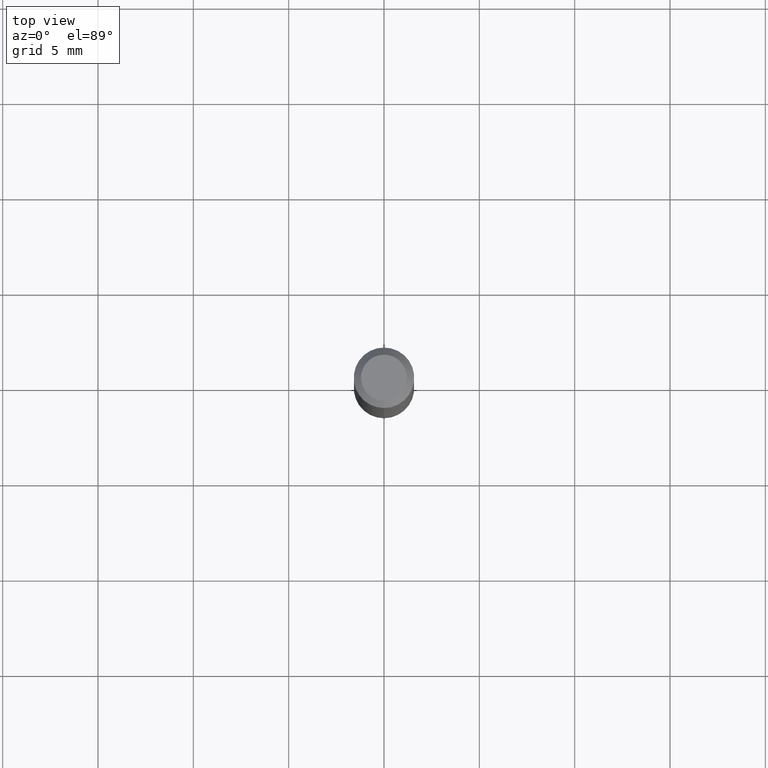
[diagram: clean part render]
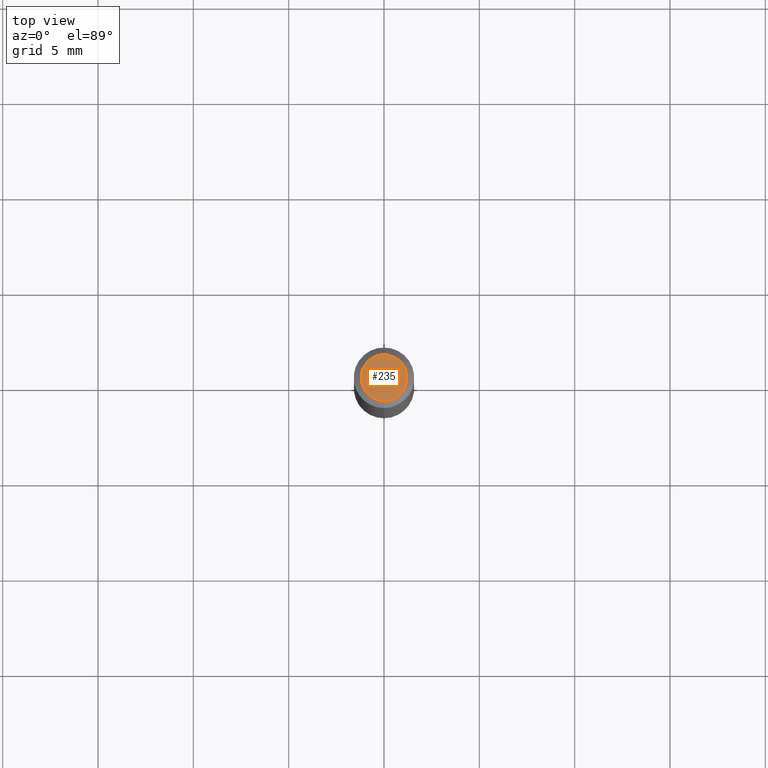
[diagram: same view with one face highlighted and labeled with its STEP entity id]
A machine part, top view. The second image highlights one B-rep face of the part: STEP entity #235.
In plain terms, the highlighted planar face has unit normal (0, -0, -1).
Its self-contained STEP definition (entity closure, byte-faithful):
#1 = CARTESIAN_POINT ( 'NONE',  ( -5.856610115379453256E-45, 8.361780120346629155E-31, 2.394895667340546181E-16 ) ) ;
#7 = DIRECTION ( 'NONE',  ( 6.982962677686265922E-15, 1.000000000000000000, -3.491500792446676840E-15 ) ) ;
#50 = DIRECTION ( 'NONE',  ( -6.982962677686266711E-15, -1.000000000000000000, 3.491500792446677234E-15 ) ) ;
#93 = AXIS2_PLACEMENT_3D ( 'NONE', #137, #291, #95 ) ;
#95 = DIRECTION ( 'NONE',  ( -6.982962677686266711E-15, -1.000000000000000000, 3.491500792446677234E-15 ) ) ;
#136 = PLANE ( 'NONE',  #406 ) ;
#137 = CARTESIAN_POINT ( 'NONE',  ( -5.856610115379453256E-45, 8.361780120346629155E-31, 2.394895667340546181E-16 ) ) ;
#174 = DIRECTION ( 'NONE',  ( 2.445455221806395692E-29, -3.491500792446676840E-15, -1.000000000000000000 ) ) ;
#208 = VERTEX_POINT ( 'NONE', #412 ) ;
#216 = ORIENTED_EDGE ( 'NONE', *, *, #392, .T. ) ;
#235 = ADVANCED_FACE ( 'NONE', ( #437 ), #136, .F. ) ;
#291 = DIRECTION ( 'NONE',  ( -2.445455221806396533E-29, 3.491500792446676445E-15, 1.000000000000000000 ) ) ;
#316 = CIRCLE ( 'NONE', #93, 0.04749999999999999362 ) ;
#323 = EDGE_CURVE ( 'NONE', #208, #372, #316, .T. ) ;
#372 = VERTEX_POINT ( 'NONE', #432 ) ;
#374 = ORIENTED_EDGE ( 'NONE', *, *, #323, .T. ) ;
#392 = EDGE_CURVE ( 'NONE', #372, #208, #491, .T. ) ;
#395 = AXIS2_PLACEMENT_3D ( 'NONE', #1, #401, #50 ) ;
#401 = DIRECTION ( 'NONE',  ( -2.445455221806396533E-29, 3.491500792446676445E-15, 1.000000000000000000 ) ) ;
#406 = AXIS2_PLACEMENT_3D ( 'NONE', #486, #174, #7 ) ;
#412 = CARTESIAN_POINT ( 'NONE',  ( -3.773273898774340269E-16, -0.04749999999999999362, 4.053358543752717650E-16 ) ) ;
#432 = CARTESIAN_POINT ( 'NONE',  ( 3.840629472727447874E-16, 0.04749999999999999362, 7.364327909283748346E-17 ) ) ;
#437 = FACE_OUTER_BOUND ( 'NONE', #450, .T. ) ;
#450 = EDGE_LOOP ( 'NONE', ( #216, #374 ) ) ;
#486 = CARTESIAN_POINT ( 'NONE',  ( 3.316907271900976096E-16, 0.04749999999999999362, -4.610150427418979475E-17 ) ) ;
#491 = CIRCLE ( 'NONE', #395, 0.04749999999999999362 ) ;